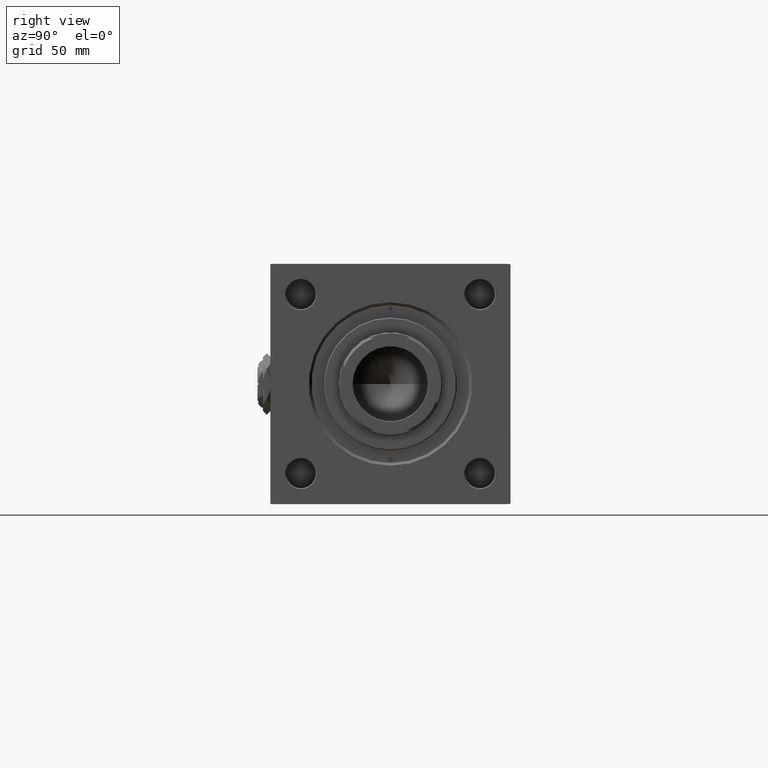
[diagram: clean part render]
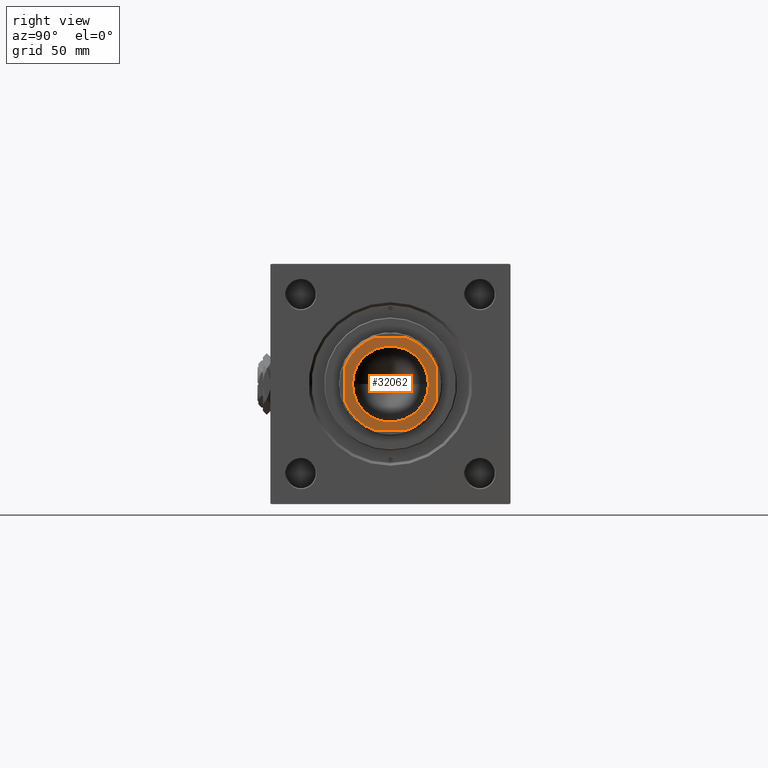
[diagram: same view with one face highlighted and labeled with its STEP entity id]
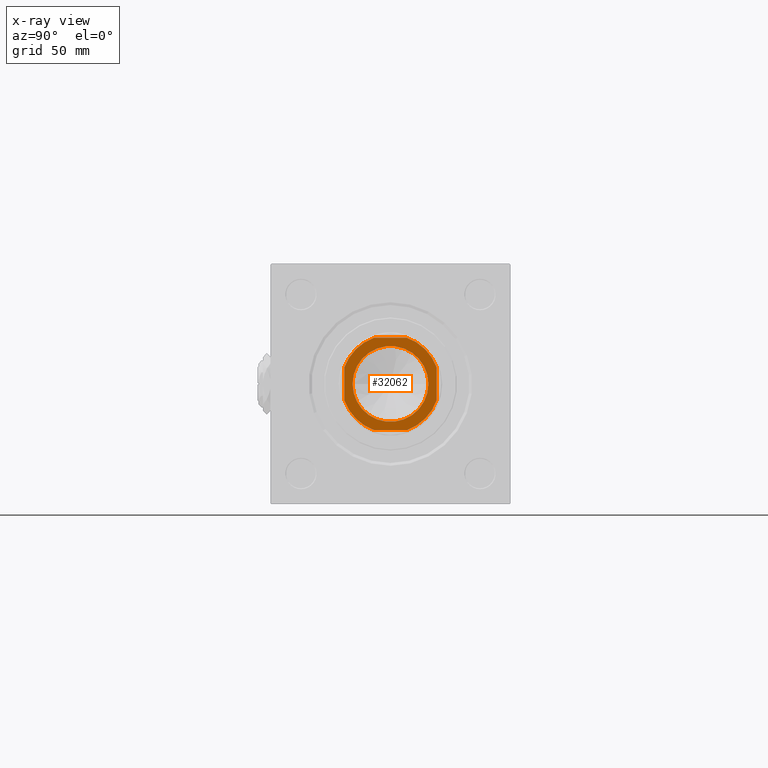
[diagram: x-ray of the same camera — body ghosted, the highlighted face saturated]
A machine part, right view. The second image highlights one B-rep face of the part: STEP entity #32062.
The next image is the same camera in x-ray: the body ghosted, the highlighted face saturated — about 0% of this face is hidden behind the body in this view.
In plain terms, the highlighted planar face has unit normal (1, 0, 0).
Its self-contained STEP definition (entity closure, byte-faithful):
#649 = VECTOR ( 'NONE', #48196, 1000.000000000000000 ) ;
#742 = DIRECTION ( 'NONE',  ( 1.000000000000000000, 0.000000000000000000, 0.000000000000000000 ) ) ;
#1749 = VERTEX_POINT ( 'NONE', #47073 ) ;
#2414 = CARTESIAN_POINT ( 'NONE',  ( 20.55000000000001137, 0.000000000000000000, 283.0000000000000568 ) ) ;
#2888 = ORIENTED_EDGE ( 'NONE', *, *, #13419, .T. ) ;
#4861 = LINE ( 'NONE', #33482, #40792 ) ;
#4979 = CIRCLE ( 'NONE', #32315, 26.50000000000004619 ) ;
#5965 = CIRCLE ( 'NONE', #45290, 26.50000000000008171 ) ;
#6105 = ORIENTED_EDGE ( 'NONE', *, *, #43093, .T. ) ;
#6434 = EDGE_CURVE ( 'NONE', #22008, #20317, #4861, .T. ) ;
#6500 = DIRECTION ( 'NONE',  ( 0.000000000000000000, -0.000000000000000000, -1.000000000000000000 ) ) ;
#6926 = CARTESIAN_POINT ( 'NONE',  ( 25.00000000000000355, 8.789197915623583768, 283.0000000000000568 ) ) ;
#6950 = EDGE_LOOP ( 'NONE', ( #2888, #29180 ) ) ;
#7586 = EDGE_CURVE ( 'NONE', #26523, #44132, #51949, .T. ) ;
#8475 = CIRCLE ( 'NONE', #38372, 20.55000000000001137 ) ;
#8492 = CARTESIAN_POINT ( 'NONE',  ( 0.000000000000000000, 0.000000000000000000, 283.0000000000000568 ) ) ;
#8514 = EDGE_LOOP ( 'NONE', ( #6105, #38837, #14890, #30268, #21670, #36732, #26399, #39102 ) ) ;
#9231 = CARTESIAN_POINT ( 'NONE',  ( -8.789197915623610413, -25.00000000000000000, 283.0000000000000568 ) ) ;
#9707 = CARTESIAN_POINT ( 'NONE',  ( 0.000000000000000000, 0.000000000000000000, 283.0000000000000568 ) ) ;
#10367 = DIRECTION ( 'NONE',  ( 1.000000000000000000, 0.000000000000000000, 0.000000000000000000 ) ) ;
#10422 = CARTESIAN_POINT ( 'NONE',  ( 8.789197915623587321, -25.00000000000000000, 283.0000000000000568 ) ) ;
#12785 = DIRECTION ( 'NONE',  ( 1.000000000000000000, 0.000000000000000000, 0.000000000000000000 ) ) ;
#13419 = EDGE_CURVE ( 'NONE', #44132, #26523, #8475, .T. ) ;
#13909 = VERTEX_POINT ( 'NONE', #36018 ) ;
#14497 = CARTESIAN_POINT ( 'NONE',  ( 8.789197915623589097, 25.00000000000000000, 283.0000000000000568 ) ) ;
#14890 = ORIENTED_EDGE ( 'NONE', *, *, #45720, .T. ) ;
#15358 = DIRECTION ( 'NONE',  ( 1.000000000000000000, 0.000000000000000000, 0.000000000000000000 ) ) ;
#15994 = DIRECTION ( 'NONE',  ( -0.000000000000000000, 0.000000000000000000, 1.000000000000000000 ) ) ;
#16352 = LINE ( 'NONE', #44438, #649 ) ;
#16970 = PLANE ( 'NONE',  #39657 ) ;
#17520 = DIRECTION ( 'NONE',  ( 1.387778780781445676E-16, -1.000000000000000000, 0.000000000000000000 ) ) ;
#17757 = AXIS2_PLACEMENT_3D ( 'NONE', #51989, #6500, #15358 ) ;
#18158 = CARTESIAN_POINT ( 'NONE',  ( 0.000000000000000000, 0.000000000000000000, 283.0000000000000568 ) ) ;
#19526 = CIRCLE ( 'NONE', #52828, 26.50000000000004263 ) ;
#20317 = VERTEX_POINT ( 'NONE', #10422 ) ;
#21670 = ORIENTED_EDGE ( 'NONE', *, *, #49173, .T. ) ;
#22008 = VERTEX_POINT ( 'NONE', #9231 ) ;
#22443 = EDGE_CURVE ( 'NONE', #20317, #1749, #52231, .T. ) ;
#22855 = DIRECTION ( 'NONE',  ( 0.000000000000000000, -0.000000000000000000, -1.000000000000000000 ) ) ;
#24297 = DIRECTION ( 'NONE',  ( -0.000000000000000000, 0.000000000000000000, 1.000000000000000000 ) ) ;
#24472 = FACE_BOUND ( 'NONE', #6950, .T. ) ;
#24579 = CARTESIAN_POINT ( 'NONE',  ( 0.000000000000000000, 0.000000000000000000, 283.0000000000000568 ) ) ;
#24891 = VERTEX_POINT ( 'NONE', #14497 ) ;
#26399 = ORIENTED_EDGE ( 'NONE', *, *, #6434, .T. ) ;
#26523 = VERTEX_POINT ( 'NONE', #47539 ) ;
#28244 = CARTESIAN_POINT ( 'NONE',  ( -25.00000000000000000, 25.00000000000000000, 283.0000000000000568 ) ) ;
#29165 = AXIS2_PLACEMENT_3D ( 'NONE', #24579, #40895, #742 ) ;
#29180 = ORIENTED_EDGE ( 'NONE', *, *, #7586, .T. ) ;
#29556 = CARTESIAN_POINT ( 'NONE',  ( -25.00000000000000000, 25.00000000000000000, 283.0000000000000568 ) ) ;
#30268 = ORIENTED_EDGE ( 'NONE', *, *, #46965, .T. ) ;
#31405 = DIRECTION ( 'NONE',  ( 1.000000000000000000, 0.000000000000000000, 0.000000000000000000 ) ) ;
#31983 = CARTESIAN_POINT ( 'NONE',  ( -24.99999999999999645, 8.789197915623727653, 283.0000000000000568 ) ) ;
#32062 = ADVANCED_FACE ( 'NONE', ( #24472, #40783 ), #16970, .T. ) ;
#32315 = AXIS2_PLACEMENT_3D ( 'NONE', #8492, #15994, #12785 ) ;
#33482 = CARTESIAN_POINT ( 'NONE',  ( -24.99999999999999289, -25.00000000000000000, 283.0000000000000568 ) ) ;
#35753 = VECTOR ( 'NONE', #52325, 1000.000000000000000 ) ;
#36004 = LINE ( 'NONE', #28244, #35753 ) ;
#36018 = CARTESIAN_POINT ( 'NONE',  ( -8.789197915623715218, 25.00000000000000000, 283.0000000000000568 ) ) ;
#36732 = ORIENTED_EDGE ( 'NONE', *, *, #41408, .T. ) ;
#37563 = DIRECTION ( 'NONE',  ( 1.000000000000000000, 0.000000000000000000, 0.000000000000000000 ) ) ;
#37830 = VECTOR ( 'NONE', #17520, 1000.000000000000000 ) ;
#38372 = AXIS2_PLACEMENT_3D ( 'NONE', #39172, #22855, #31405 ) ;
#38724 = CARTESIAN_POINT ( 'NONE',  ( 0.000000000000000000, 0.000000000000000000, 283.0000000000000568 ) ) ;
#38837 = ORIENTED_EDGE ( 'NONE', *, *, #45409, .T. ) ;
#39102 = ORIENTED_EDGE ( 'NONE', *, *, #22443, .T. ) ;
#39172 = CARTESIAN_POINT ( 'NONE',  ( 0.000000000000000000, 0.000000000000000000, 283.0000000000000568 ) ) ;
#39657 = AXIS2_PLACEMENT_3D ( 'NONE', #9707, #45327, #37563 ) ;
#40783 = FACE_OUTER_BOUND ( 'NONE', #8514, .T. ) ;
#40792 = VECTOR ( 'NONE', #46054, 1000.000000000000000 ) ;
#40895 = DIRECTION ( 'NONE',  ( -0.000000000000000000, 0.000000000000000000, 1.000000000000000000 ) ) ;
#41408 = EDGE_CURVE ( 'NONE', #43346, #22008, #4979, .T. ) ;
#43093 = EDGE_CURVE ( 'NONE', #1749, #43373, #16352, .T. ) ;
#43346 = VERTEX_POINT ( 'NONE', #51601 ) ;
#43373 = VERTEX_POINT ( 'NONE', #6926 ) ;
#44132 = VERTEX_POINT ( 'NONE', #2414 ) ;
#44438 = CARTESIAN_POINT ( 'NONE',  ( 25.00000000000000000, 25.00000000000000000, 283.0000000000000568 ) ) ;
#45290 = AXIS2_PLACEMENT_3D ( 'NONE', #38724, #47020, #10367 ) ;
#45327 = DIRECTION ( 'NONE',  ( -0.000000000000000000, 0.000000000000000000, 1.000000000000000000 ) ) ;
#45409 = EDGE_CURVE ( 'NONE', #43373, #24891, #19526, .T. ) ;
#45622 = LINE ( 'NONE', #29556, #37830 ) ;
#45720 = EDGE_CURVE ( 'NONE', #24891, #13909, #36004, .T. ) ;
#45755 = VERTEX_POINT ( 'NONE', #31983 ) ;
#46054 = DIRECTION ( 'NONE',  ( 1.000000000000000000, 0.000000000000000000, 0.000000000000000000 ) ) ;
#46965 = EDGE_CURVE ( 'NONE', #13909, #45755, #5965, .T. ) ;
#47020 = DIRECTION ( 'NONE',  ( -0.000000000000000000, 0.000000000000000000, 1.000000000000000000 ) ) ;
#47073 = CARTESIAN_POINT ( 'NONE',  ( 25.00000000000000355, -8.789197915623574886, 283.0000000000000568 ) ) ;
#47539 = CARTESIAN_POINT ( 'NONE',  ( -20.55000000000001137, 2.516649172247812343E-15, 283.0000000000000568 ) ) ;
#48196 = DIRECTION ( 'NONE',  ( -1.387778780781445676E-16, 1.000000000000000000, -0.000000000000000000 ) ) ;
#49173 = EDGE_CURVE ( 'NONE', #45755, #43346, #45622, .T. ) ;
#51601 = CARTESIAN_POINT ( 'NONE',  ( -24.99999999999999645, -8.789197915623628177, 283.0000000000000568 ) ) ;
#51949 = CIRCLE ( 'NONE', #17757, 20.55000000000001137 ) ;
#51989 = CARTESIAN_POINT ( 'NONE',  ( 0.000000000000000000, 0.000000000000000000, 283.0000000000000568 ) ) ;
#52125 = DIRECTION ( 'NONE',  ( 1.000000000000000000, 0.000000000000000000, 0.000000000000000000 ) ) ;
#52231 = CIRCLE ( 'NONE', #29165, 26.50000000000004263 ) ;
#52325 = DIRECTION ( 'NONE',  ( -1.000000000000000000, -0.000000000000000000, -0.000000000000000000 ) ) ;
#52828 = AXIS2_PLACEMENT_3D ( 'NONE', #18158, #24297, #52125 ) ;